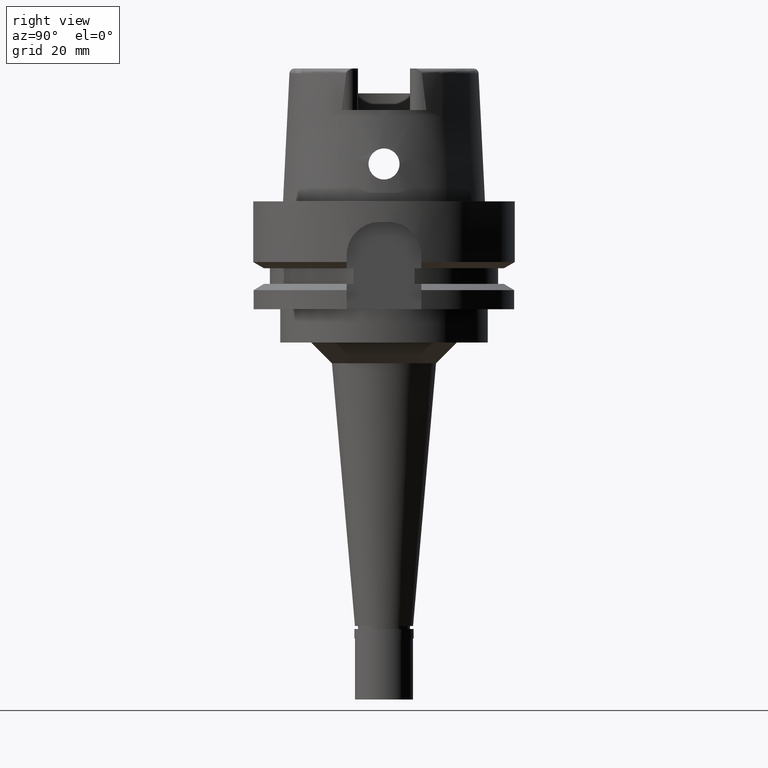
[diagram: clean part render]
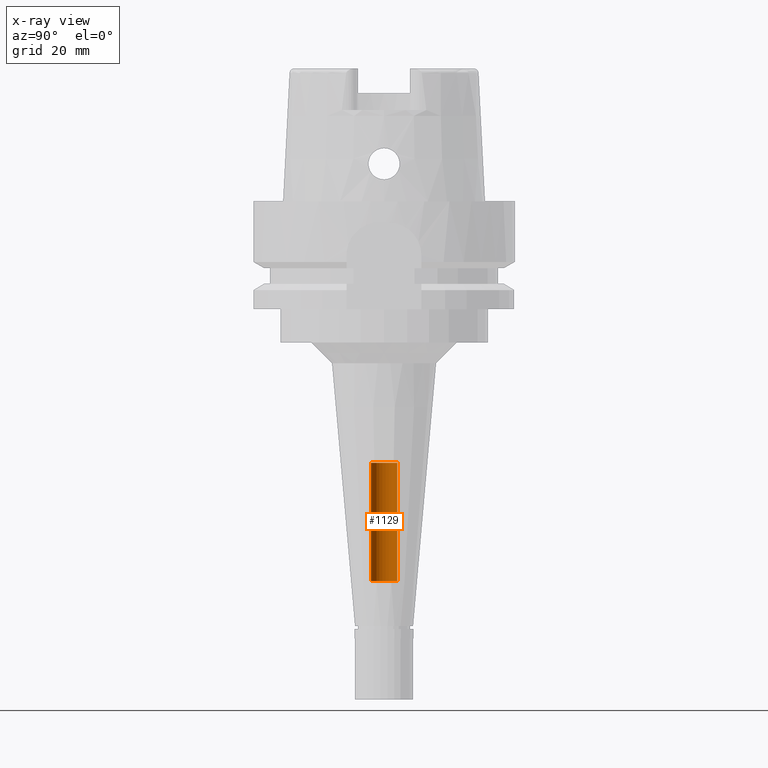
[diagram: x-ray — body ghosted, one internal face saturated and labeled with its STEP entity id]
A machine part, right view, then the same camera in x-ray: the body is ghosted and one INTERNAL B-rep face — a face not visible from any outside direction — is saturated and labeled: STEP entity #1129.
In plain terms, the highlighted cylindrical surface (edge-blend (fillet) strip) has radius 3.2 mm, axis along (0, 0, -1).
Its self-contained STEP definition (entity closure, byte-faithful):
#56 = CARTESIAN_POINT ( 'NONE',  ( 0.0000000000000000000, 3.200000000000000178, -63.00000000000000000 ) ) ;
#91 = DIRECTION ( 'NONE',  ( 0.0000000000000000000, -1.000000000000000000, 0.0000000000000000000 ) ) ;
#94 = EDGE_CURVE ( 'NONE', #1345, #2664, #724, .T. ) ;
#112 = CARTESIAN_POINT ( 'NONE',  ( 0.0000000000000000000, -3.200000000000000178, -63.00000000000000000 ) ) ;
#119 = AXIS2_PLACEMENT_3D ( 'NONE', #2994, #4710, #91 ) ;
#160 = LINE ( 'NONE', #2620, #2284 ) ;
#244 = CARTESIAN_POINT ( 'NONE',  ( 0.0000000000000000000, 3.200000000000000178, -91.50000000000000000 ) ) ;
#596 = EDGE_CURVE ( 'NONE', #3742, #1345, #3997, .T. ) ;
#724 = CIRCLE ( 'NONE', #811, 3.200000000000000178 ) ;
#811 = AXIS2_PLACEMENT_3D ( 'NONE', #3212, #4082, #1545 ) ;
#859 = ORIENTED_EDGE ( 'NONE', *, *, #3889, .F. ) ;
#883 = CIRCLE ( 'NONE', #3942, 3.200000000000000178 ) ;
#943 = CYLINDRICAL_SURFACE ( 'NONE', #119, 3.200000000000000178 ) ;
#1129 = ADVANCED_FACE ( 'NONE', ( #1318 ), #943, .F. ) ;
#1318 = FACE_OUTER_BOUND ( 'NONE', #1896, .T. ) ;
#1345 = VERTEX_POINT ( 'NONE', #56 ) ;
#1545 = DIRECTION ( 'NONE',  ( 0.0000000000000000000, 1.000000000000000000, 0.0000000000000000000 ) ) ;
#1581 = CARTESIAN_POINT ( 'NONE',  ( 0.0000000000000000000, -3.200000000000000178, -91.50000000000000000 ) ) ;
#1896 = EDGE_LOOP ( 'NONE', ( #2963, #859, #3403, #4219 ) ) ;
#2113 = VECTOR ( 'NONE', #3780, 1000.000000000000000 ) ;
#2158 = VERTEX_POINT ( 'NONE', #1581 ) ;
#2284 = VECTOR ( 'NONE', #5195, 1000.000000000000000 ) ;
#2463 = CARTESIAN_POINT ( 'NONE',  ( 0.0000000000000000000, 3.200000000000000178, -91.50000000000000000 ) ) ;
#2530 = DIRECTION ( 'NONE',  ( 0.0000000000000000000, -1.000000000000000000, 0.0000000000000000000 ) ) ;
#2620 = CARTESIAN_POINT ( 'NONE',  ( 0.0000000000000000000, -3.200000000000000178, -91.50000000000000000 ) ) ;
#2664 = VERTEX_POINT ( 'NONE', #112 ) ;
#2963 = ORIENTED_EDGE ( 'NONE', *, *, #94, .T. ) ;
#2994 = CARTESIAN_POINT ( 'NONE',  ( 0.0000000000000000000, 0.0000000000000000000, 39.39999999999999858 ) ) ;
#3212 = CARTESIAN_POINT ( 'NONE',  ( 0.0000000000000000000, 0.0000000000000000000, -63.00000000000000000 ) ) ;
#3403 = ORIENTED_EDGE ( 'NONE', *, *, #4207, .T. ) ;
#3697 = CARTESIAN_POINT ( 'NONE',  ( 0.0000000000000000000, 0.0000000000000000000, -91.50000000000000000 ) ) ;
#3742 = VERTEX_POINT ( 'NONE', #2463 ) ;
#3780 = DIRECTION ( 'NONE',  ( 0.0000000000000000000, 0.0000000000000000000, 1.000000000000000000 ) ) ;
#3889 = EDGE_CURVE ( 'NONE', #2158, #2664, #160, .T. ) ;
#3942 = AXIS2_PLACEMENT_3D ( 'NONE', #3697, #5411, #2530 ) ;
#3997 = LINE ( 'NONE', #244, #2113 ) ;
#4082 = DIRECTION ( 'NONE',  ( 0.0000000000000000000, 0.0000000000000000000, 1.000000000000000000 ) ) ;
#4207 = EDGE_CURVE ( 'NONE', #2158, #3742, #883, .T. ) ;
#4219 = ORIENTED_EDGE ( 'NONE', *, *, #596, .T. ) ;
#4710 = DIRECTION ( 'NONE',  ( 0.0000000000000000000, 0.0000000000000000000, -1.000000000000000000 ) ) ;
#5195 = DIRECTION ( 'NONE',  ( 0.0000000000000000000, 0.0000000000000000000, 1.000000000000000000 ) ) ;
#5411 = DIRECTION ( 'NONE',  ( 0.0000000000000000000, 0.0000000000000000000, -1.000000000000000000 ) ) ;